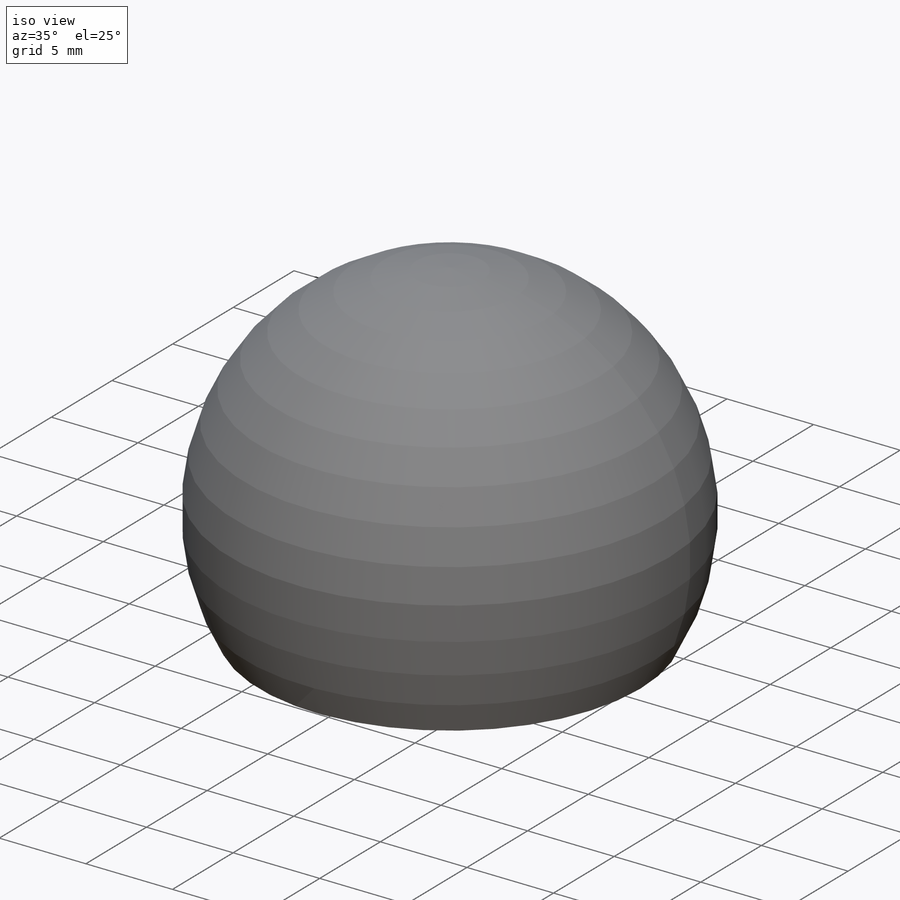
[diagram: iso view]
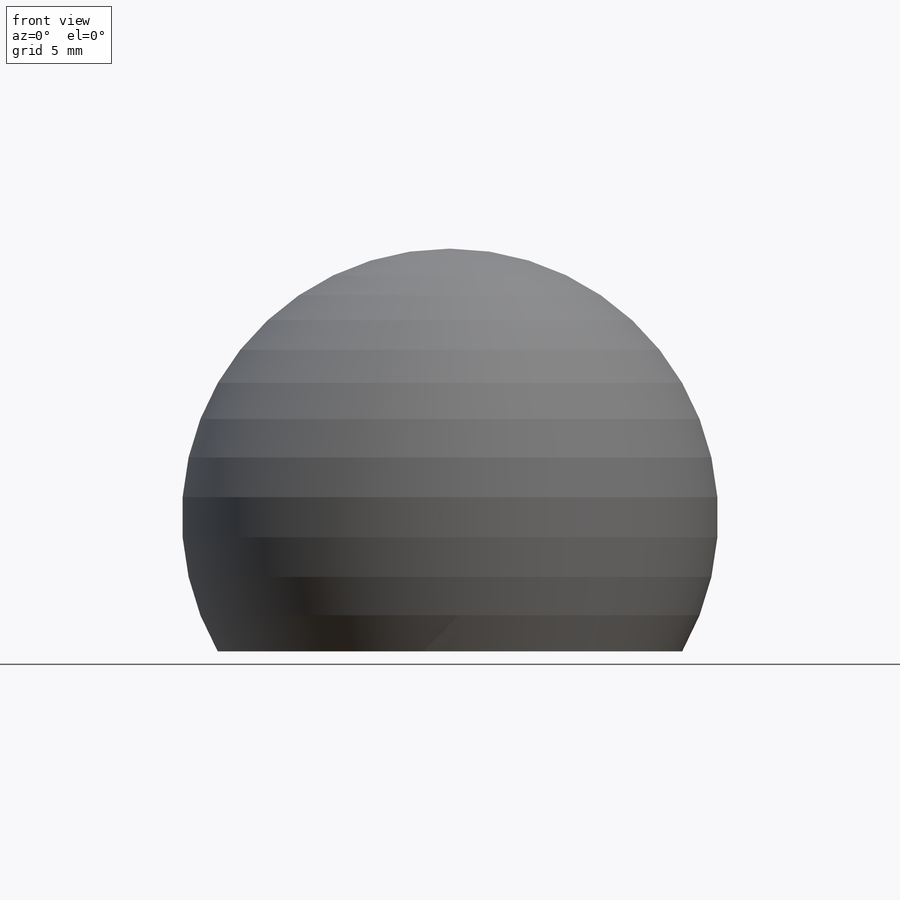
[diagram: front view]
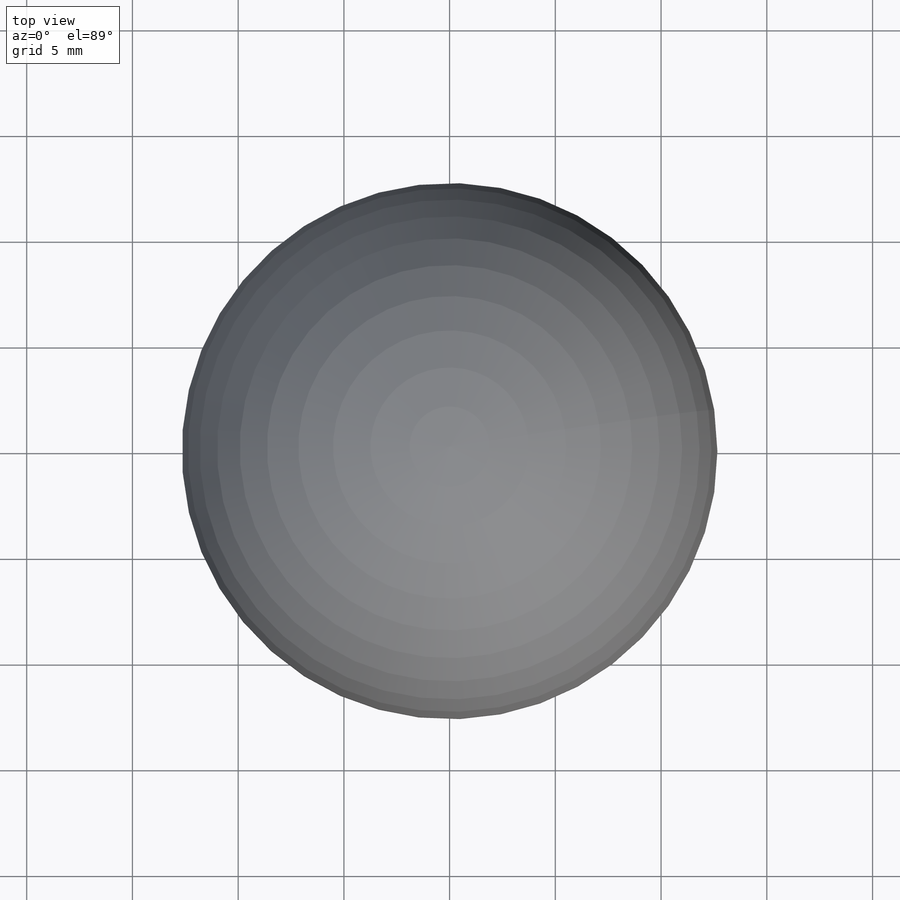
[diagram: top view]
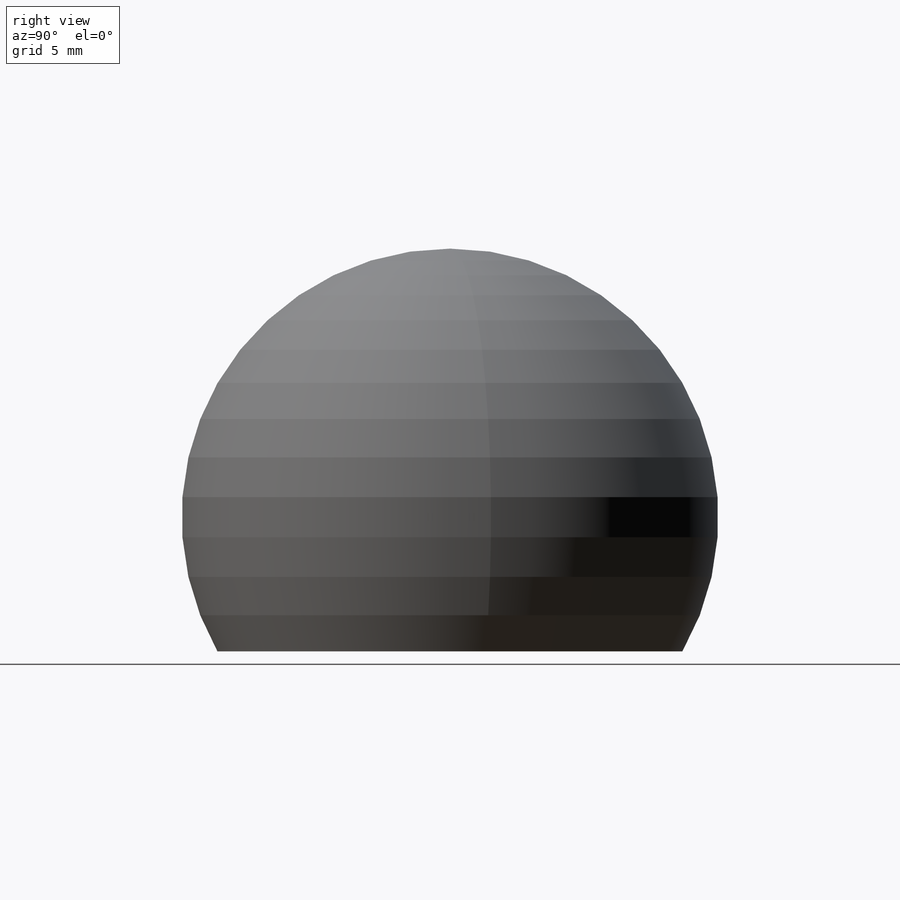
[diagram: right view]
SOLIDWORKS PART (.sldprt)
format: sldprt  version: not decoded by parser v0  size: 344,576 bytes
history: native  units: mm
features: sketch x9, cut_extrude x4, cut_revolve x4, plane x3, material x1, revolve x1, thread x1, chamfer x1 + 3 further entries (+10 scaffold rows collapsed)
feature tree (37):
  scaffold x10  (default folders/planes/origin — collapsed)
  material  "Chrome Stainless Steel"
  plane  "Plane X-Y"
  plane  "Plane X-Z"
  plane  "Plane Y-Z"
  "Design Table"
  "Axis - Y"
  "Axis - Z"
  sketch  "Sketch1"  dims[Ball_Diameter=25.4mm D2=25.4mm]
  revolve  "Complete_Ball"  Angle=360deg
  sketch  "Sketch2"  dims[D1=~21.997045mm Truncated_height=19.05mm]
  cut_extrude  "Truncated_ball"  [1 undecoded]
  sketch  "Sketch3"  dims[Recess_diameter=16.9164mm]
  cut_extrude  "Recessed"  Depth=0.127mm
  sketch  "Sketch4"  dims[D1=4.953mm]
  cut_extrude  "Threaded"  [1 undecoded]
  thread  "Cosmetic Thread1"  Diameter=6.35mm  [1 undecoded]
  chamfer  "Chamfer1"  Distance=0.254mm Angle=45deg
  sketch  "Sketch5"  dims[c1.D1=7.1374mm c1.D2=3.9116mm c2.D1=3.5052mm c2.D3=7.1374mm]
  cut_revolve  "Counterbored_hole"  Angle=360deg
  sketch  "Sketch6"  dims[D1=3.9116mm D2=7.1374mm D3=3.5052mm]
  cut_revolve  "Full_ball_CtBored_hole"  Angle=360deg
  sketch  "Sketch7"  dims[D1=3.175mm D2=6.35mm]
  cut_revolve  "Ball_w_concentric_hole"  Angle=360deg
  sketch  "Sketch8"  dims[D1=4.7625mm D2=3.175mm]
  cut_revolve  "Truncated_ball_w_blind_hole"  Angle=360deg
  sketch  "Sketch9"  dims[D1=~0.79375mm]
  cut_extrude  "Cut-Extrude1"  Depth=0.127mm
decode coverage: 18 of 20 modeling features carry decoded parameters; 3 rows unclassified (native names shown)
note: ~ marks probable driven/reference dimensions
note: 3 parameter values undecoded
note: suppression state not decoded; provenance and decode notes live in map.json
